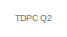
[diagram: root canvas - part 1/4, top center region]
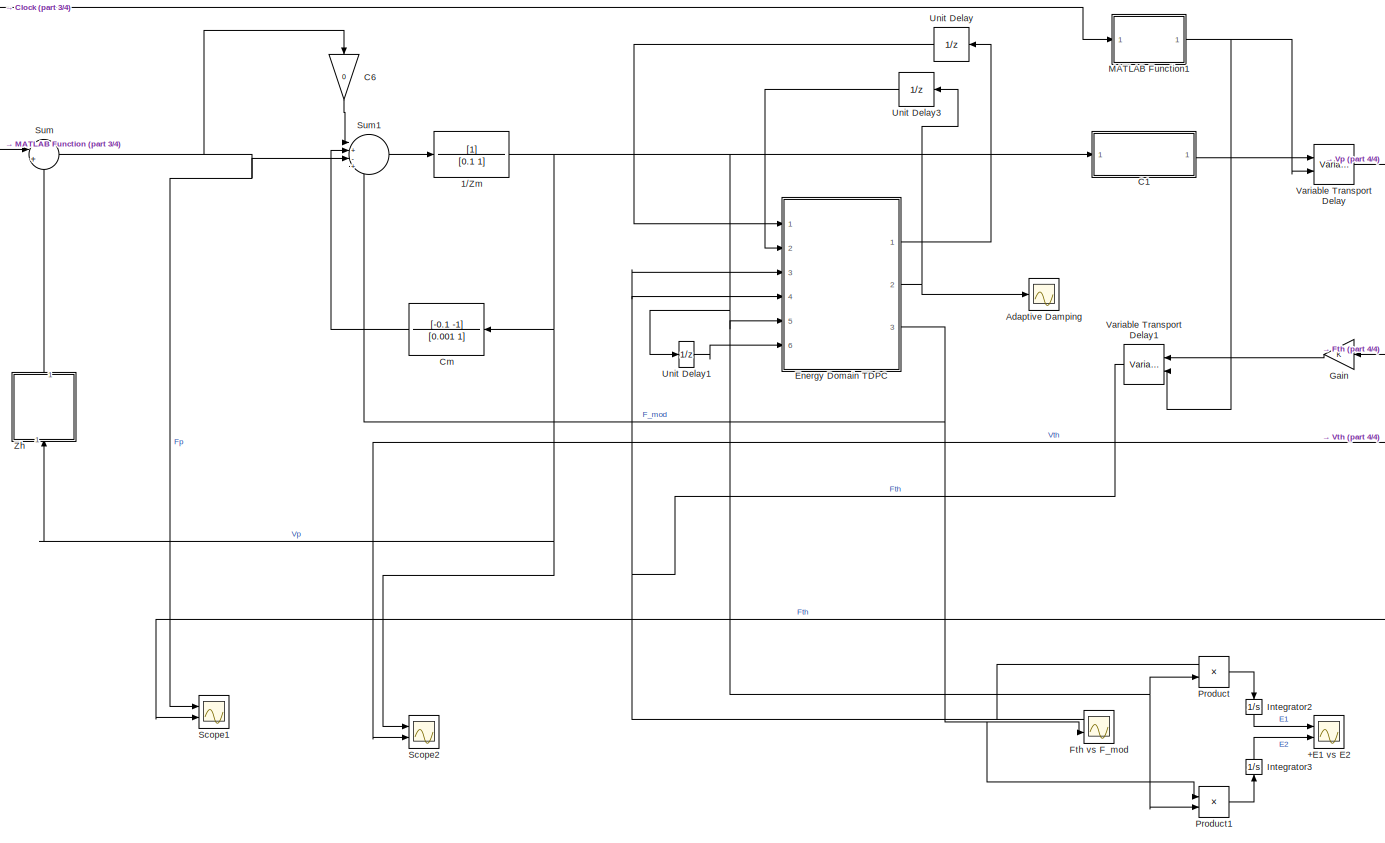
[diagram: root canvas - part 2/4, center side, full height]
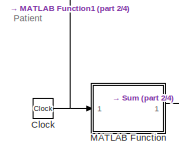
[diagram: root canvas - part 3/4, top left region]
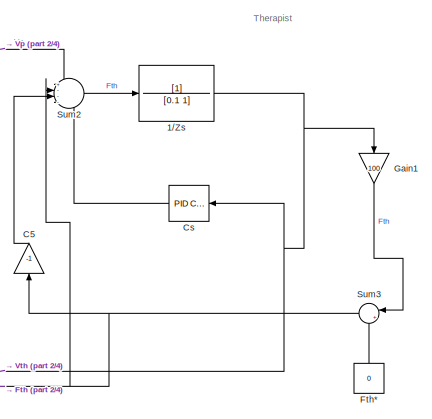
[diagram: root canvas - part 4/4, middle right region]
MODEL slx_69905532e83f
KIND model
CONFIG AbsTol = auto
CONFIG EnableMultiTasking = off
CONFIG FixedStep = 0.0001
CONFIG MaxStep = auto
CONFIG MinStep = auto
CONFIG RelTol = 1e-3
CONFIG SampleTimeConstraint = Unconstrained
CONFIG SolverName = ode4
CONFIG StartTime = 0.0
CONFIG StopTime = 20
BLOCK [Scope] +E1 vs E2
  Floating = off
  NumInputPorts = 2
  Ports = [2]
  ScopeSpecificationString = Simulink.scopes.TimeScopeBlockCfg('CurrentConfiguration', extmgr.ConfigurationSet(extmgr.Configuration('Core','General UI',true),extmgr.Configuration('Core','Source UI',true),extmgr.Configuration('Sources','WiredSimulink',true,'DataLoggingVariableName','ScopeData2'),extmgr.Configuration('Visuals','Time Domain',true,'SerializedDisplays',{struct('MinYLimReal','-1.84629','MaxYLimReal','0.2235','YLabe...<+1416ch>
BLOCK [TransferFcn] 1//Zm
  Denominator = [0.1 1]
BLOCK [TransferFcn] 1//Zs
  Denominator = [0.1 1]
BLOCK [Scope] Adaptive Damping
  Floating = off
  NumInputPorts = 1
  Ports = [1]
  ScopeSpecificationString = Simulink.scopes.TimeScopeBlockCfg('CurrentConfiguration', extmgr.ConfigurationSet(extmgr.Configuration('Core','General UI',true),extmgr.Configuration('Core','Source UI',true),extmgr.Configuration('Sources','WiredSimulink',true,'DataLoggingVariableName','ScopeData1'),extmgr.Configuration('Visuals','Time Domain',true,'SerializedDisplays',{struct('MinYLimReal','-10303929.48113','MaxYLimReal','9273536...<+1503ch>
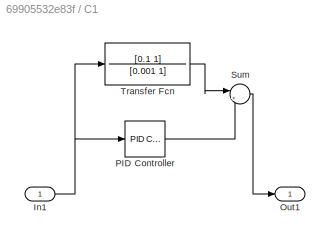
BLOCK [SubSystem] C1
  Ports = [1, 1]
  RequestExecContextInheritance = off
BLOCK [Inport] C1/In1
BLOCK [Outport] C1/Out1
BLOCK [Reference] C1/PID Controller  REF=slpidlib/PID Controller
  Ports = [1, 1]
  SourceBlock = slpidlib/PID Controller
  SourceProductBaseCode = SL
  SourceType = PID 1dof
BLOCK [Sum] C1/Sum
  Inputs = |++
  Ports = [2, 1]
BLOCK [TransferFcn] C1/Transfer Fcn
  Denominator = [0.001 1]
  Numerator = [0.1 1]
BLOCK [Gain] C5 
  Gain = -1
  NameLocation = right
BLOCK [Gain] C6 
  Gain = 0
  NameLocation = left
BLOCK [Clock] Clock
BLOCK [TransferFcn] Cm
  Denominator = [0.001 1]
  Numerator = [-0.1 -1]
BLOCK [Reference] Cs  REF=slpidlib/PID Controller
  Ports = [1, 1]
  SourceBlock = slpidlib/PID Controller
  SourceProductBaseCode = SL
  SourceType = PID 1dof
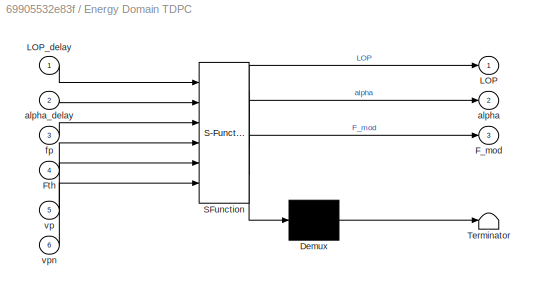
BLOCK [SubSystem] Energy Domain TDPC
  ErrorFcn = Stateflow.Translate.translate
  PermitHierarchicalResolution = ExplicitOnly
  Ports = [6, 3]
  RequestExecContextInheritance = off
  SFBlockType = MATLAB Function
  TreatAsAtomicUnit = on
BLOCK [Demux] Energy Domain TDPC/ Demux 
  Outputs = 1
  Ports = [1, 1]
BLOCK [S-Function] Energy Domain TDPC/ SFunction 
  EnableBusSupport = on
  FunctionName = sf_sfun
  PortCounts = [6 4]
  Ports = [6, 4]
  SFcnIsStateOwnerBlock = off
  SFunctionDeploymentMode = off
  Tag = Stateflow S-Function 2
BLOCK [Terminator] Energy Domain TDPC/ Terminator 
BLOCK [Outport] Energy Domain TDPC/F_mod
  Port = 3
BLOCK [Inport] Energy Domain TDPC/Fth
  Port = 4
BLOCK [Outport] Energy Domain TDPC/LOP
BLOCK [Inport] Energy Domain TDPC/LOP_delay
BLOCK [Outport] Energy Domain TDPC/alpha
  Port = 2
BLOCK [Inport] Energy Domain TDPC/alpha_delay
  Port = 2
BLOCK [Inport] Energy Domain TDPC/fp
  Port = 3
BLOCK [Inport] Energy Domain TDPC/vp
  Port = 5
BLOCK [Inport] Energy Domain TDPC/vpn
  Port = 6
BLOCK [Scope] Fth vs F_mod
  Floating = off
  NumInputPorts = 2
  Ports = [2]
  ScopeSpecificationString = Simulink.scopes.TimeScopeBlockCfg('CurrentConfiguration', extmgr.ConfigurationSet(extmgr.Configuration('Core','General UI',true),extmgr.Configuration('Core','Source UI',true),extmgr.Configuration('Sources','WiredSimulink',true,'DataLoggingVariableName','ScopeData5'),extmgr.Configuration('Visuals','Time Domain',true,'SerializedDisplays',{struct('MinYLimReal','-11815081920267612283983493363375538176...<+1689ch>
BLOCK [Constant] Fth*
  NameLocation = right
  OutDataTypeStr = Inherit: Inherit via back propagation
  Value = 0
BLOCK [Gain] Gain
BLOCK [Gain] Gain1
  Gain = 100
  NameLocation = left
BLOCK [Integrator] Integrator2
  NameLocation = left
  Ports = [1, 1]
BLOCK [Integrator] Integrator3
  NameLocation = left
  Ports = [1, 1]
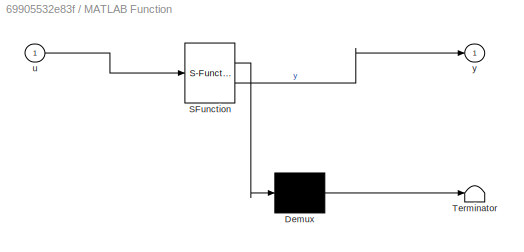
BLOCK [SubSystem] MATLAB Function
  ErrorFcn = Stateflow.Translate.translate
  PermitHierarchicalResolution = ExplicitOnly
  Ports = [1, 1]
  RequestExecContextInheritance = off
  SFBlockType = MATLAB Function
  TreatAsAtomicUnit = on
BLOCK [Demux] MATLAB Function/ Demux 
  Outputs = 1
  Ports = [1, 1]
BLOCK [S-Function] MATLAB Function/ SFunction 
  EnableBusSupport = on
  FunctionName = sf_sfun
  PortCounts = [1 2]
  Ports = [1, 2]
  SFcnIsStateOwnerBlock = off
  SFunctionDeploymentMode = off
  Tag = Stateflow S-Function 4
BLOCK [Terminator] MATLAB Function/ Terminator 
BLOCK [Inport] MATLAB Function/u
BLOCK [Outport] MATLAB Function/y
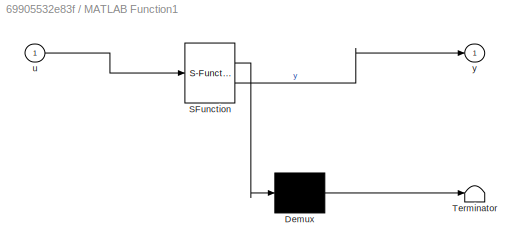
BLOCK [SubSystem] MATLAB Function1
  ErrorFcn = Stateflow.Translate.translate
  PermitHierarchicalResolution = ExplicitOnly
  Ports = [1, 1]
  RequestExecContextInheritance = off
  SFBlockType = MATLAB Function
  TreatAsAtomicUnit = on
BLOCK [Demux] MATLAB Function1/ Demux 
  Outputs = 1
  Ports = [1, 1]
BLOCK [S-Function] MATLAB Function1/ SFunction 
  EnableBusSupport = on
  FunctionName = sf_sfun
  PortCounts = [1 2]
  Ports = [1, 2]
  SFcnIsStateOwnerBlock = off
  SFunctionDeploymentMode = off
  Tag = Stateflow S-Function 1
BLOCK [Terminator] MATLAB Function1/ Terminator 
BLOCK [Inport] MATLAB Function1/u
BLOCK [Outport] MATLAB Function1/y
BLOCK [Product] Product
  Ports = [2, 1]
BLOCK [Product] Product1
  Ports = [2, 1]
BLOCK [Scope] Scope1
  Floating = off
  NumInputPorts = 2
  Ports = [2]
  ScopeSpecificationString = Simulink.scopes.TimeScopeBlockCfg('CurrentConfiguration', extmgr.ConfigurationSet(extmgr.Configuration('Core','General UI',true),extmgr.Configuration('Core','Source UI',true),extmgr.Configuration('Sources','WiredSimulink',true,'DataLoggingVariableName','ScopeData9'),extmgr.Configuration('Visuals','Time Domain',true,'SerializedDisplays',{struct('MinYLimReal','-18.89662','MaxYLimReal','19.38585','YL...<+1400ch>
BLOCK [Scope] Scope2
  Floating = off
  NumInputPorts = 2
  Ports = [2]
  ScopeSpecificationString = Simulink.scopes.TimeScopeBlockCfg('CurrentConfiguration', extmgr.ConfigurationSet(extmgr.Configuration('Core','General UI',true),extmgr.Configuration('Core','Source UI',true),extmgr.Configuration('Sources','WiredSimulink',true,'DataLoggingVariableName','ScopeData10'),extmgr.Configuration('Visuals','Time Domain',true,'SerializedDisplays',{struct('MinYLimReal','-0.18999','MaxYLimReal','0.19401','YLa...<+1395ch>
BLOCK [Sum] Sum
  Inputs = |+-
  Ports = [2, 1]
BLOCK [Sum] Sum1
  Inputs = |+-+-
  Ports = [4, 1]
BLOCK [Sum] Sum2
  Inputs = +---
  Ports = [4, 1]
BLOCK [Sum] Sum3
  Inputs = |++
  Ports = [2, 1]
BLOCK [UnitDelay] Unit Delay
  HasFrameUpgradeWarning = on
  SampleTime = -1
BLOCK [UnitDelay] Unit Delay1
  HasFrameUpgradeWarning = on
  SampleTime = -1
BLOCK [UnitDelay] Unit Delay3
  HasFrameUpgradeWarning = on
  SampleTime = -1
BLOCK [VariableTransportDelay] Variable Transport Delay
  Ports = [2, 1]
BLOCK [VariableTransportDelay] Variable Transport Delay1
  Ports = [2, 1]
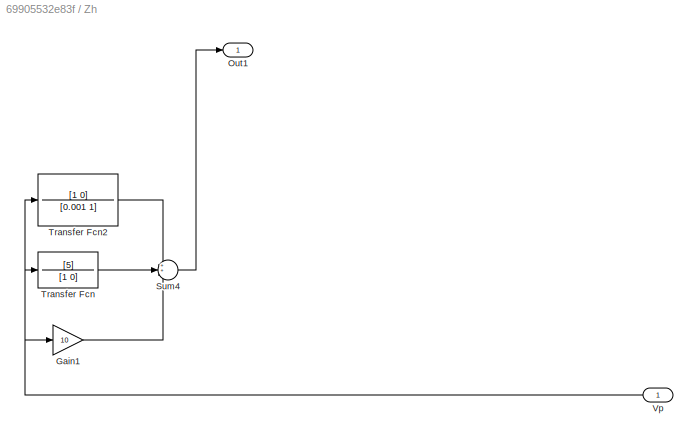
BLOCK [SubSystem] Zh
  NameLocation = right
  Ports = [1, 1]
  RequestExecContextInheritance = off
BLOCK [Gain] Zh/Gain1
  Gain = 10
BLOCK [Outport] Zh/Out1
BLOCK [Sum] Zh/Sum4
  Inputs = 3
  Ports = [3, 1]
BLOCK [TransferFcn] Zh/Transfer Fcn
  Denominator = [1 0]
  Numerator = [5]
BLOCK [TransferFcn] Zh/Transfer Fcn2
  Denominator = [0.001 1]
  Numerator = [1 0]
BLOCK [Inport] Zh/Vp
ANNOTATION (root): TDPC Q2
ANNOTATION (root): Patient
ANNOTATION (root): Therapist
NET 1//Zm:1 -> C1:1, Cm:1, Energy Domain TDPC:5, Product1:2, Product:2, Scope2:1, Unit Delay1:1, Zh:1
NET 1//Zs:1 -> Cs:1, Gain1:1, Scope2:2
NET C1/In1:1 -> C1/PID Controller:1, C1/Transfer Fcn:1
LINE C1/PID Controller:1 -> C1/Sum:2
LINE C1/Sum:1 -> C1/Out1:1
LINE C1/Transfer Fcn:1 -> C1/Sum:1
LINE C1:1 -> Variable Transport Delay:1
LINE C5 :1 -> Sum2:3
LINE C6 :1 -> Sum1:1
NET Clock:1 -> MATLAB Function1:1, MATLAB Function:1
LINE Cm:1 -> Sum1:2
LINE Cs:1 -> Sum2:4
LINE Energy Domain TDPC:1 -> Unit Delay:1
NET Energy Domain TDPC:2 -> Adaptive Damping:1, Unit Delay3:1
NET Energy Domain TDPC:3 -> Fth vs F_mod:2, Product1:1, Sum1:4
LINE Fth*:1 -> Sum3:2
LINE Gain1:1 -> Sum3:1
LINE Gain:1 -> Variable Transport Delay1:1
LINE Integrator2:1 -> +E1 vs E2:1
LINE Integrator3:1 -> +E1 vs E2:2
NET MATLAB Function1:1 -> Variable Transport Delay1:2, Variable Transport Delay:2
LINE MATLAB Function:1 -> Sum:1
LINE Product1:1 -> Integrator3:1
LINE Product:1 -> Integrator2:1
LINE Sum1:1 -> 1//Zm:1
LINE Sum2:1 -> 1//Zs:1
NET Sum3:1 -> C5 :1, Gain:1, Scope1:2, Sum2:2
NET Sum:1 -> C6 :1, Scope1:1, Sum1:3
LINE Unit Delay1:1 -> Energy Domain TDPC:6
LINE Unit Delay3:1 -> Energy Domain TDPC:2
LINE Unit Delay:1 -> Energy Domain TDPC:1
NET Variable Transport Delay1:1 -> Energy Domain TDPC:3, Energy Domain TDPC:4, Fth vs F_mod:1, Product:1
LINE Variable Transport Delay:1 -> Sum2:1
LINE Zh/Gain1:1 -> Zh/Sum4:3
LINE Zh/Sum4:1 -> Zh/Out1:1
LINE Zh/Transfer Fcn2:1 -> Zh/Sum4:1
LINE Zh/Transfer Fcn:1 -> Zh/Sum4:2
NET Zh/Vp:1 -> Zh/Gain1:1, Zh/Transfer Fcn2:1, Zh/Transfer Fcn:1
LINE Zh:1 -> Sum:2
note: NET lines group one-source signal fan-out (src -> all destinations, sorted); 1:1 wires keep LINE
CHART MATLAB Function1 states=1 transitions=1
  STATE_LABEL 'eML_blk_kernel()'
  STATE_LABEL 'SCRIPT:\nfunction y = fcn(u)\n\ny = 0.1+0.02*cos(12*u);\n'
CHART Energy Domain TDPC states=1 transitions=1
  STATE_LABEL 'eML_blk_kernel()'
  STATE_LABEL "SCRIPT:\nfunction [LOP,alpha, F_mod] = Stabilizer(LOP_delay,alpha_delay,fp,Fth,vp,vpn)\n\nPL = (fp'*vp);\nin2 = (alpha_delay*(vpn')*vpn);\nLOP = LOP_delay+(0.001*(PL+in2));\n\nif LOP>=0\n    alpha = 0;\nelse \n    alpha=(-LOP)/(0.001*(vp')*vp)+0.00001;\nend\n\nF_mod= Fth+(alpha*vp)+0.00001;"
CHART MATLAB Function states=1 transitions=1
  STATE_LABEL 'eML_blk_kernel()'
  STATE_LABEL 'SCRIPT:\nfunction y = fcn(u)\n\ny = sin(5*u)+ cos(8*u);\n'
CHART  states=0 transitions=0
CHART  states=0 transitions=0
CHART  states=0 transitions=0
